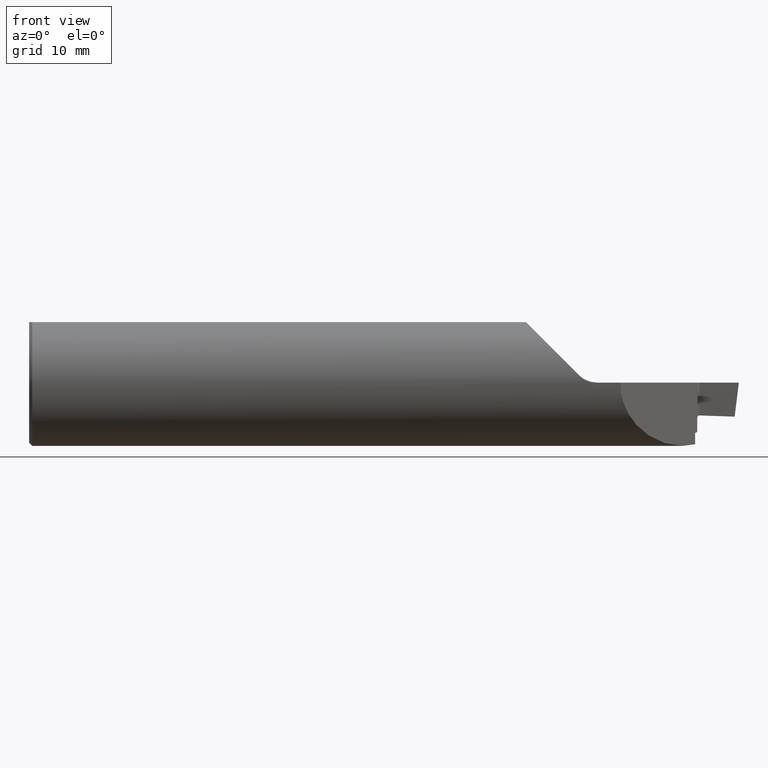
[diagram: clean part render]
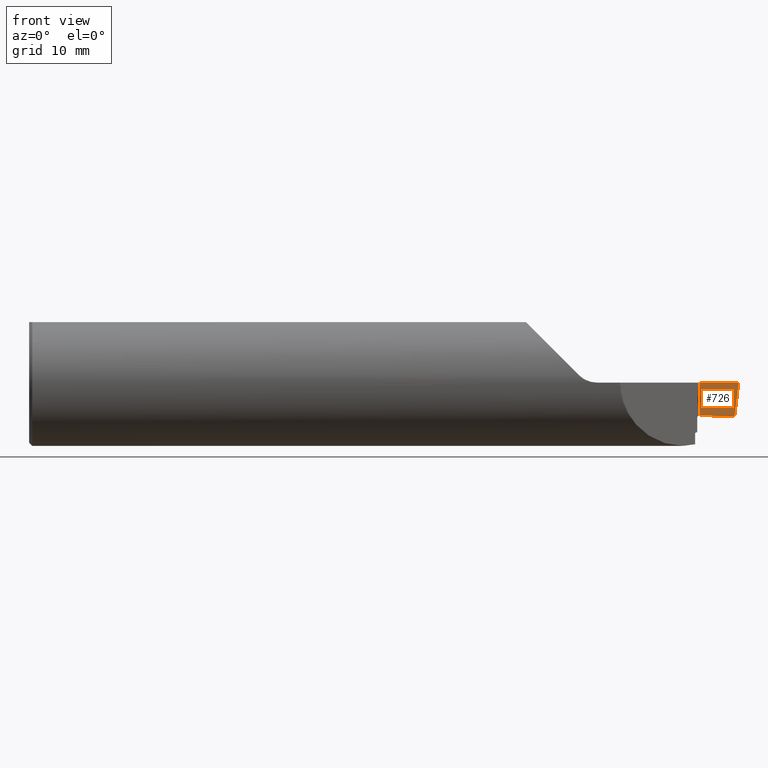
[diagram: same view with one face highlighted and labeled with its STEP entity id]
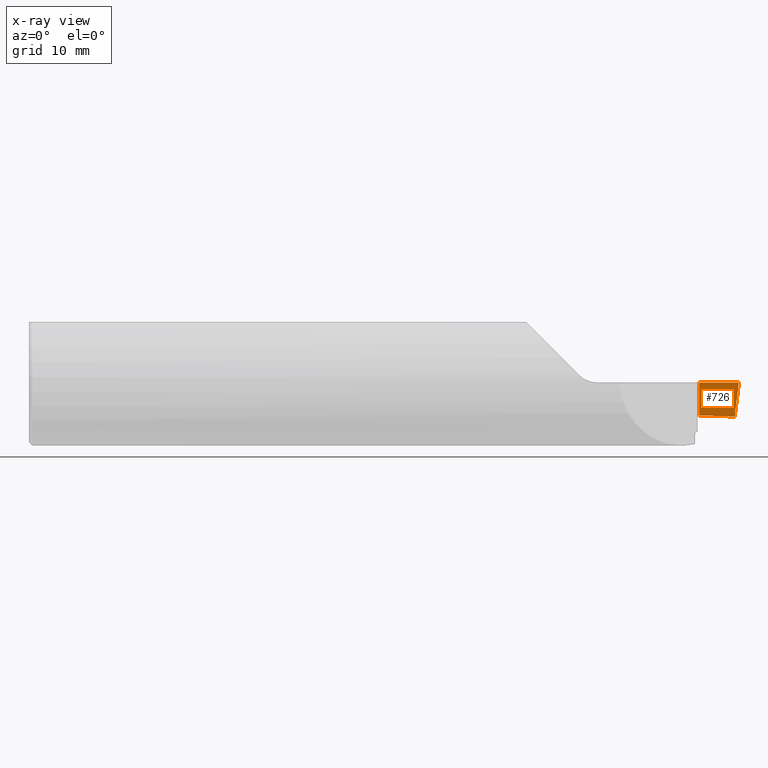
[diagram: x-ray of the same camera — body ghosted, the highlighted face saturated]
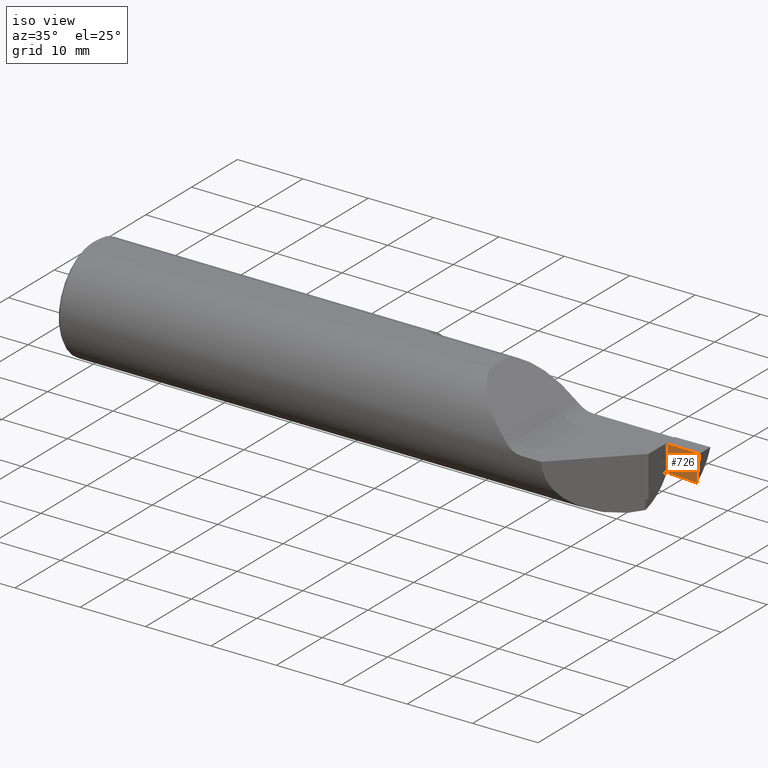
[diagram: same view with one face highlighted and labeled with its STEP entity id]
A machine part, front view. The second image highlights one B-rep face of the part: STEP entity #726.
The next image is the same camera in x-ray: the body ghosted, the highlighted face saturated — about 0% of this face is hidden behind the body in this view.
A second angle (iso view) of the same face is appended — the face is thin or edge-on in the first view.
In plain terms, the highlighted planar face has unit normal (0.0174, 0.9992, 0.0349).
Its self-contained STEP definition (entity closure, byte-faithful):
#3 = CARTESIAN_POINT ( 'NONE',  ( 3.305273353677435022, 0.2224118744322242380, -0.1621615816519557107 ) ) ;
#10 = VECTOR ( 'NONE', #707, 39.37007874015748854 ) ;
#49 = ORIENTED_EDGE ( 'NONE', *, *, #339, .T. ) ;
#58 = CARTESIAN_POINT ( 'NONE',  ( 3.305174524064372843, 0.2167499296919060681, 0.000000000000000000 ) ) ;
#66 = ORIENTED_EDGE ( 'NONE', *, *, #860, .F. ) ;
#82 = EDGE_CURVE ( 'NONE', #146, #698, #856, .T. ) ;
#90 = VECTOR ( 'NONE', #281, 39.37007874015748854 ) ;
#91 = AXIS2_PLACEMENT_3D ( 'NONE', #360, #622, #557 ) ;
#95 = CARTESIAN_POINT ( 'NONE',  ( 3.420598946105614324, 0.2205346712176109725, -0.1660501501509080435 ) ) ;
#124 = VECTOR ( 'NONE', #452, 39.37007874015748143 ) ;
#146 = VERTEX_POINT ( 'NONE', #3 ) ;
#173 = CARTESIAN_POINT ( 'NONE',  ( 3.305414319419061275, 0.2304877963612421976, -0.3934609555193290253 ) ) ;
#215 = FACE_OUTER_BOUND ( 'NONE', #886, .T. ) ;
#230 = EDGE_CURVE ( 'NONE', #345, #232, #678, .T. ) ;
#232 = VERTEX_POINT ( 'NONE', #474 ) ;
#239 = CARTESIAN_POINT ( 'NONE',  ( 3.479377932124471773, 0.2195751485530464675, -0.1679532648395072325 ) ) ;
#281 = DIRECTION ( 'NONE',  ( -0.9998476951563912696, 0.01745240643727496294, -0.000000000000000000 ) ) ;
#339 = EDGE_CURVE ( 'NONE', #698, #345, #434, .T. ) ;
#345 = VERTEX_POINT ( 'NONE', #784 ) ;
#360 = CARTESIAN_POINT ( 'NONE',  ( 3.305414319419061275, 0.2304877963612421976, -0.3934609555193290253 ) ) ;
#428 = CARTESIAN_POINT ( 'NONE',  ( 3.479377932124471773, 0.2195751485530464675, -0.1679532648395072325 ) ) ;
#432 = PLANE ( 'NONE',  #91 ) ;
#434 = LINE ( 'NONE', #643, #10 ) ;
#452 = DIRECTION ( 'NONE',  ( -0.0006090802009083879243, -0.03489418134011375294, 0.9993908270190957621 ) ) ;
#474 = CARTESIAN_POINT ( 'NONE',  ( 3.305174524064372843, 0.2167499296919060681, 5.335640612625514099E-18 ) ) ;
#557 = DIRECTION ( 'NONE',  ( 0.000000000000000000, -0.03490480639812536950, 0.9993906415863165194 ) ) ;
#594 = CARTESIAN_POINT ( 'NONE',  ( 3.305273353677435022, 0.2224118744322242380, -0.1621615816519557107 ) ) ;
#622 = DIRECTION ( 'NONE',  ( 0.01744177490282161971, 0.9992386149554827179, 0.03489949670250105246 ) ) ;
#643 = CARTESIAN_POINT ( 'NONE',  ( 3.449508080647999186, 0.2285930130029735496, -0.4112236830160430623 ) ) ;
#678 = LINE ( 'NONE', #58, #90 ) ;
#698 = VERTEX_POINT ( 'NONE', #428 ) ;
#707 = DIRECTION ( 'NONE',  ( 0.1217869383157133556, -0.03676811390802551399, 0.9918750160455352960 ) ) ;
#726 = ADVANCED_FACE ( 'NONE', ( #215 ), #432, .F. ) ;
#728 = ORIENTED_EDGE ( 'NONE', *, *, #82, .T. ) ;
#758 = ORIENTED_EDGE ( 'NONE', *, *, #230, .T. ) ;
#784 = CARTESIAN_POINT ( 'NONE',  ( 3.500000000000000444, 0.2133492383597804520, 0.000000000000000000 ) ) ;
#787 = LINE ( 'NONE', #173, #124 ) ;
#856 =( BOUNDED_CURVE ( )  B_SPLINE_CURVE ( 3, ( #594, #873, #95, #239 ),
 .UNSPECIFIED., .F., .T. ) 
 B_SPLINE_CURVE_WITH_KNOTS ( ( 4, 4 ),
 ( 0.8134705324725394204, 0.8414364796514802736 ),
 .UNSPECIFIED. ) 
 CURVE ( )  GEOMETRIC_REPRESENTATION_ITEM ( )  RATIONAL_B_SPLINE_CURVE ( ( 1.000000000000000000, 0.9999348265451211137, 0.9999348265451211137, 1.000000000000000000 ) ) 
 REPRESENTATION_ITEM ( '' )  );
#860 = EDGE_CURVE ( 'NONE', #146, #232, #787, .T. ) ;
#873 = CARTESIAN_POINT ( 'NONE',  ( 3.362560304044444948, 0.2214803081410956498, -0.1641194632588558189 ) ) ;
#886 = EDGE_LOOP ( 'NONE', ( #728, #49, #758, #66 ) ) ;